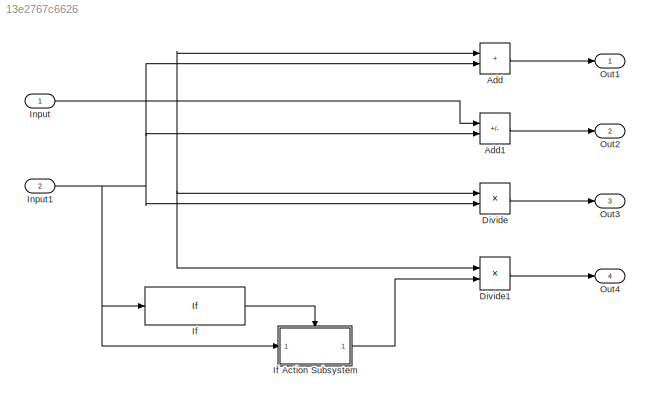
MODEL slx_13e2767c6626
KIND model
CONFIG AbsTol = auto
CONFIG EnableMultiTasking = off
CONFIG FixedStep = auto
CONFIG MaxStep = auto
CONFIG MinStep = auto
CONFIG RelTol = 1e-3
CONFIG SampleTimeConstraint = Unconstrained
CONFIG SolverName = VariableStepAuto
CONFIG StartTime = 0.0
CONFIG StopTime = 10.0
BLOCK [Sum] Add
  IconShape = rectangular
  Ports = [2, 1]
BLOCK [Sum] Add1
  IconShape = rectangular
  Inputs = --
  Ports = [2, 1]
BLOCK [Product] Divide
  Inputs = **
  Ports = [2, 1]
BLOCK [Product] Divide1
  Inputs = */
  Ports = [2, 1]
BLOCK [If] If
  Ports = [1, 1]
  ShowElse = off
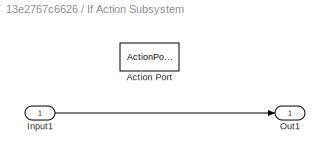
BLOCK [SubSystem] If Action Subsystem
  Ports = [1, 1, 0, 0, 0, 0, 0, 1]
  RequestExecContextInheritance = off
  TreatAsAtomicUnit = on
BLOCK [ActionPort] If Action Subsystem/Action Port
  ActionPortLabel = if(u1 > 0)
BLOCK [Inport] If Action Subsystem/Input1
BLOCK [Outport] If Action Subsystem/Out1
BLOCK [Inport] Input
BLOCK [Inport] Input1
  Port = 2
BLOCK [Outport] Out1
BLOCK [Outport] Out2
  Port = 2
BLOCK [Outport] Out3
  Port = 3
BLOCK [Outport] Out4
  Port = 4
LINE Add1:1 -> Out2:1
LINE Add:1 -> Out1:1
LINE Divide1:1 -> Out4:1
LINE Divide:1 -> Out3:1
LINE If Action Subsystem/Input1:1 -> If Action Subsystem/Out1:1
LINE If Action Subsystem:1 -> Divide1:2
LINE If:1 -> If Action Subsystem:ifaction
NET Input1:1 -> Add1:2, Add:2, Divide:2, If Action Subsystem:1, If:1
NET Input:1 -> Add1:1, Add:1, Divide1:1, Divide:1
note: NET lines group one-source signal fan-out (src -> all destinations, sorted); 1:1 wires keep LINE
